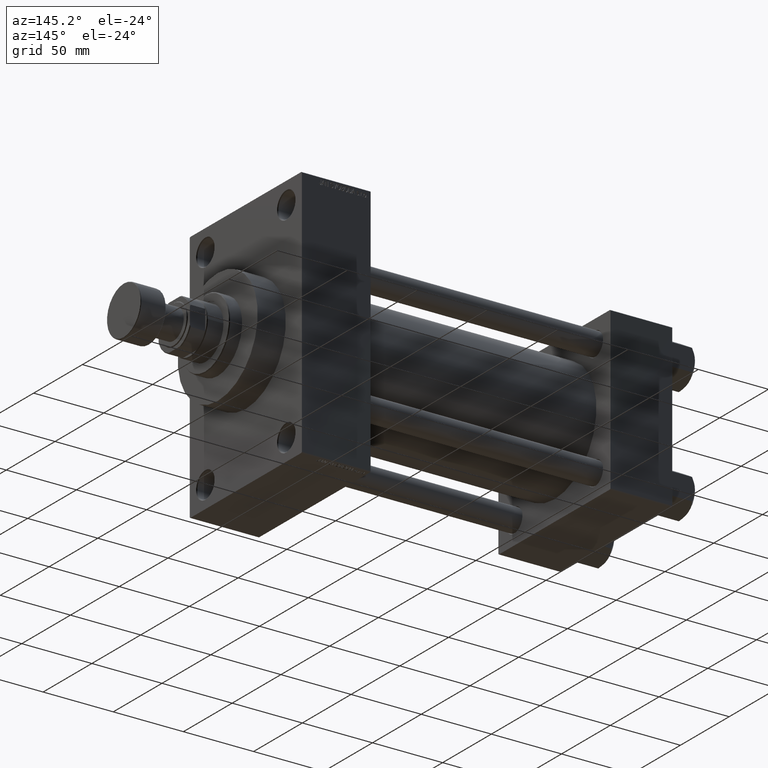
[diagram: clean part render]
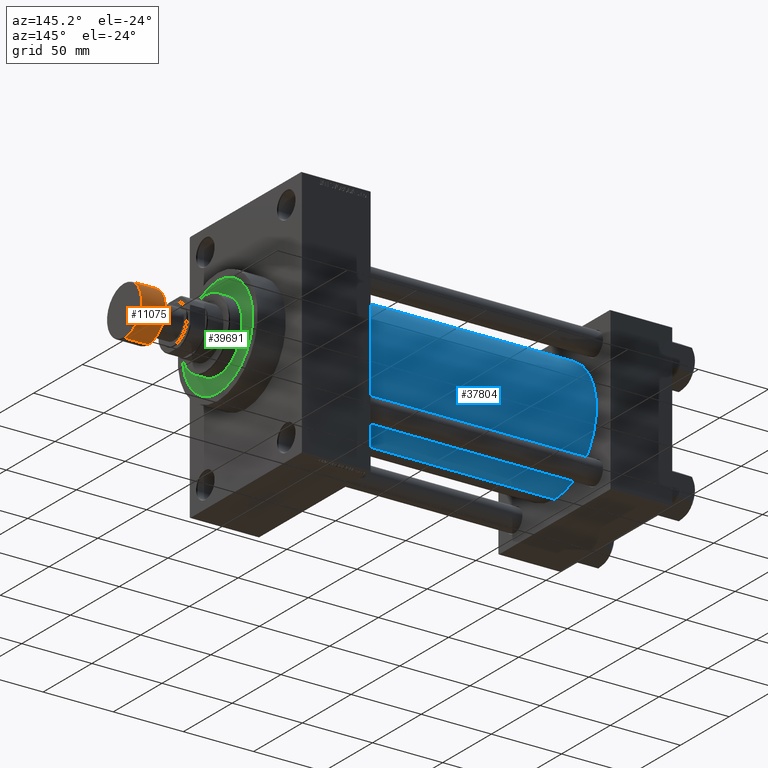
[diagram: same view with three faces highlighted in distinct colors, each labeled with its STEP entity id]
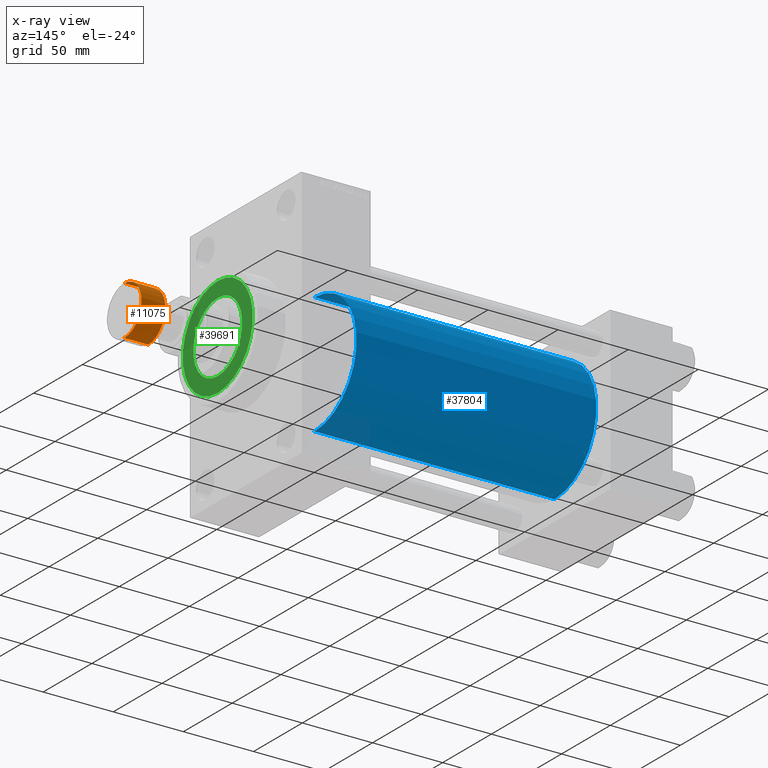
[diagram: x-ray of the same camera — body ghosted, the three highlighted faces saturated]
A machine part, auxiliary view with three faces highlighted in distinct colors.
The next image is the same camera in x-ray (body ghosted, the three faces saturated) — at least one of them is partly hidden behind the body in this view.
Their STEP definitions:

[orange] entity #11075 — the highlighted cylindrical surface (edge-blend (fillet) strip) has radius 17.5 mm, axis along (1, 0, 0).
#258 = CARTESIAN_POINT ( 'NONE',  ( -17.50000000000000355, 2.143131898507868643E-15, -17.49999999999999645 ) ) ;
#2056 = DIRECTION ( 'NONE',  ( 0.000000000000000000, 0.000000000000000000, 1.000000000000000000 ) ) ;
#3227 = CYLINDRICAL_SURFACE ( 'NONE', #24430, 17.50000000000000355 ) ;
#3337 = CARTESIAN_POINT ( 'NONE',  ( 17.50000000000000355, 0.000000000000000000, -0.5000000000000004441 ) ) ;
#3708 = VECTOR ( 'NONE', #2056, 1000.000000000000000 ) ;
#5228 = LINE ( 'NONE', #23979, #3708 ) ;
#6389 = VERTEX_POINT ( 'NONE', #44377 ) ;
#7118 = DIRECTION ( 'NONE',  ( 1.000000000000000000, 0.000000000000000000, 0.000000000000000000 ) ) ;
#8615 = AXIS2_PLACEMENT_3D ( 'NONE', #35458, #16232, #31075 ) ;
#8659 = CIRCLE ( 'NONE', #8615, 17.50000000000000355 ) ;
#11075 = ADVANCED_FACE ( 'NONE', ( #36568 ), #3227, .T. ) ;
#13045 = ORIENTED_EDGE ( 'NONE', *, *, #22729, .T. ) ;
#13384 = VECTOR ( 'NONE', #21028, 1000.000000000000000 ) ;
#13530 = CARTESIAN_POINT ( 'NONE',  ( 0.000000000000000000, 0.000000000000000000, -0.5000000000000004441 ) ) ;
#14430 = CARTESIAN_POINT ( 'NONE',  ( 0.000000000000000000, 0.000000000000000000, -18.00000000000000000 ) ) ;
#16171 = CIRCLE ( 'NONE', #17717, 17.50000000000000355 ) ;
#16232 = DIRECTION ( 'NONE',  ( 0.000000000000000000, 0.000000000000000000, 1.000000000000000000 ) ) ;
#17717 = AXIS2_PLACEMENT_3D ( 'NONE', #13530, #46865, #36149 ) ;
#19610 = EDGE_CURVE ( 'NONE', #6389, #39145, #5228, .T. ) ;
#20471 = ORIENTED_EDGE ( 'NONE', *, *, #19610, .F. ) ;
#21028 = DIRECTION ( 'NONE',  ( 0.000000000000000000, 0.000000000000000000, 1.000000000000000000 ) ) ;
#22729 = EDGE_CURVE ( 'NONE', #32971, #39145, #16171, .T. ) ;
#23979 = CARTESIAN_POINT ( 'NONE',  ( 17.50000000000000355, 0.000000000000000000, -18.00000000000000000 ) ) ;
#24430 = AXIS2_PLACEMENT_3D ( 'NONE', #14430, #29268, #7118 ) ;
#29268 = DIRECTION ( 'NONE',  ( 0.000000000000000000, 0.000000000000000000, 1.000000000000000000 ) ) ;
#29786 = CARTESIAN_POINT ( 'NONE',  ( -17.50000000000000355, 2.143131898507868643E-15, -0.5000000000000004441 ) ) ;
#31075 = DIRECTION ( 'NONE',  ( 1.000000000000000000, 0.000000000000000000, 0.000000000000000000 ) ) ;
#31236 = CARTESIAN_POINT ( 'NONE',  ( -17.50000000000000355, 2.143131898507868643E-15, -18.00000000000000000 ) ) ;
#32971 = VERTEX_POINT ( 'NONE', #29786 ) ;
#34213 = ORIENTED_EDGE ( 'NONE', *, *, #40725, .T. ) ;
#35130 = LINE ( 'NONE', #31236, #13384 ) ;
#35458 = CARTESIAN_POINT ( 'NONE',  ( 0.000000000000000000, 0.000000000000000000, -17.49999999999999645 ) ) ;
#36149 = DIRECTION ( 'NONE',  ( 1.000000000000000000, 0.000000000000000000, 0.000000000000000000 ) ) ;
#36568 = FACE_OUTER_BOUND ( 'NONE', #38068, .T. ) ;
#38068 = EDGE_LOOP ( 'NONE', ( #34213, #46005, #13045, #20471 ) ) ;
#39145 = VERTEX_POINT ( 'NONE', #3337 ) ;
#40374 = VERTEX_POINT ( 'NONE', #258 ) ;
#40725 = EDGE_CURVE ( 'NONE', #6389, #40374, #8659, .T. ) ;
#44377 = CARTESIAN_POINT ( 'NONE',  ( 17.50000000000000355, 0.000000000000000000, -17.49999999999999645 ) ) ;
#46005 = ORIENTED_EDGE ( 'NONE', *, *, #46087, .T. ) ;
#46087 = EDGE_CURVE ( 'NONE', #40374, #32971, #35130, .T. ) ;
#46865 = DIRECTION ( 'NONE',  ( -0.000000000000000000, -0.000000000000000000, -1.000000000000000000 ) ) ;

[blue] entity #37804 — the highlighted cylindrical surface (partial cylindrical patch) has radius 43 mm, axis along (-1, -0, -0).
#891 = CARTESIAN_POINT ( 'NONE',  ( 43.99999999999998579, -2.602085213965210642E-15, 43.00000000000000000 ) ) ;
#2475 = AXIS2_PLACEMENT_3D ( 'NONE', #32392, #6610, #36295 ) ;
#2553 = EDGE_CURVE ( 'NONE', #31349, #4031, #41338, .T. ) ;
#3620 = CYLINDRICAL_SURFACE ( 'NONE', #6993, 43.00000000000000000 ) ;
#4031 = VERTEX_POINT ( 'NONE', #891 ) ;
#4959 = LINE ( 'NONE', #46323, #16144 ) ;
#6610 = DIRECTION ( 'NONE',  ( 1.000000000000000000, -0.000000000000000000, 0.000000000000000000 ) ) ;
#6993 = AXIS2_PLACEMENT_3D ( 'NONE', #25779, #44269, #14110 ) ;
#8551 = CARTESIAN_POINT ( 'NONE',  ( 215.0000000000000284, 2.663896022368408223E-15, -43.00000000000000000 ) ) ;
#9498 = CARTESIAN_POINT ( 'NONE',  ( 215.0000000000000284, -2.602085213965210642E-15, 0.000000000000000000 ) ) ;
#14110 = DIRECTION ( 'NONE',  ( 0.000000000000000000, 0.000000000000000000, 1.000000000000000000 ) ) ;
#14749 = EDGE_LOOP ( 'NONE', ( #38107, #15426, #33558, #35048 ) ) ;
#15256 = EDGE_CURVE ( 'NONE', #32601, #33030, #43218, .T. ) ;
#15426 = ORIENTED_EDGE ( 'NONE', *, *, #34130, .T. ) ;
#16144 = VECTOR ( 'NONE', #31220, 1000.000000000000000 ) ;
#17758 = FACE_OUTER_BOUND ( 'NONE', #14749, .T. ) ;
#19967 = EDGE_CURVE ( 'NONE', #33030, #4031, #35091, .T. ) ;
#20504 = CARTESIAN_POINT ( 'NONE',  ( 215.0000000000000284, -2.602085213965210642E-15, 43.00000000000000000 ) ) ;
#24346 = DIRECTION ( 'NONE',  ( 1.000000000000000000, 0.000000000000000000, 0.000000000000000000 ) ) ;
#25328 = AXIS2_PLACEMENT_3D ( 'NONE', #9498, #24346, #39194 ) ;
#25779 = CARTESIAN_POINT ( 'NONE',  ( 215.0000000000000284, -2.602085213965210642E-15, 0.000000000000000000 ) ) ;
#27387 = CARTESIAN_POINT ( 'NONE',  ( 43.99999999999998579, 2.663896022368408223E-15, -43.00000000000000000 ) ) ;
#30497 = CARTESIAN_POINT ( 'NONE',  ( 215.0000000000000284, -2.602085213965210642E-15, 43.00000000000000000 ) ) ;
#31220 = DIRECTION ( 'NONE',  ( -1.000000000000000000, -0.000000000000000000, -0.000000000000000000 ) ) ;
#31349 = VERTEX_POINT ( 'NONE', #27387 ) ;
#32392 = CARTESIAN_POINT ( 'NONE',  ( 43.99999999999998579, -2.602085213965210642E-15, 0.000000000000000000 ) ) ;
#32601 = VERTEX_POINT ( 'NONE', #8551 ) ;
#33030 = VERTEX_POINT ( 'NONE', #30497 ) ;
#33558 = ORIENTED_EDGE ( 'NONE', *, *, #2553, .T. ) ;
#34130 = EDGE_CURVE ( 'NONE', #32601, #31349, #4959, .T. ) ;
#35048 = ORIENTED_EDGE ( 'NONE', *, *, #19967, .F. ) ;
#35091 = LINE ( 'NONE', #20504, #46371 ) ;
#36295 = DIRECTION ( 'NONE',  ( 0.000000000000000000, 0.000000000000000000, 1.000000000000000000 ) ) ;
#37804 = ADVANCED_FACE ( 'NONE', ( #17758 ), #3620, .T. ) ;
#38107 = ORIENTED_EDGE ( 'NONE', *, *, #15256, .F. ) ;
#39194 = DIRECTION ( 'NONE',  ( 0.000000000000000000, 0.000000000000000000, -1.000000000000000000 ) ) ;
#41338 = CIRCLE ( 'NONE', #2475, 43.00000000000000000 ) ;
#43218 = CIRCLE ( 'NONE', #25328, 43.00000000000000000 ) ;
#44269 = DIRECTION ( 'NONE',  ( -1.000000000000000000, -0.000000000000000000, -0.000000000000000000 ) ) ;
#45576 = DIRECTION ( 'NONE',  ( -1.000000000000000000, -0.000000000000000000, -0.000000000000000000 ) ) ;
#46323 = CARTESIAN_POINT ( 'NONE',  ( 215.0000000000000284, 2.663896022368408223E-15, -43.00000000000000000 ) ) ;
#46371 = VECTOR ( 'NONE', #45576, 1000.000000000000000 ) ;

[green] entity #39691 — the highlighted planar face has unit normal (1, 0, 0).
#658 = AXIS2_PLACEMENT_3D ( 'NONE', #34285, #19202, #19687 ) ;
#3318 = FACE_OUTER_BOUND ( 'NONE', #18402, .T. ) ;
#5024 = DIRECTION ( 'NONE',  ( 1.000000000000000000, 0.000000000000000000, 0.000000000000000000 ) ) ;
#8472 = CIRCLE ( 'NONE', #35674, 25.00000000000000000 ) ;
#8968 = ORIENTED_EDGE ( 'NONE', *, *, #34493, .T. ) ;
#11416 = EDGE_CURVE ( 'NONE', #41539, #40353, #27520, .T. ) ;
#12308 = CIRCLE ( 'NONE', #658, 25.00000000000000000 ) ;
#12553 = DIRECTION ( 'NONE',  ( 1.000000000000000000, 0.000000000000000000, 0.000000000000000000 ) ) ;
#15600 = AXIS2_PLACEMENT_3D ( 'NONE', #18639, #17682, #40076 ) ;
#17682 = DIRECTION ( 'NONE',  ( 0.000000000000000000, 0.000000000000000000, 1.000000000000000000 ) ) ;
#18402 = EDGE_LOOP ( 'NONE', ( #29853, #8968 ) ) ;
#18639 = CARTESIAN_POINT ( 'NONE',  ( 0.000000000000000000, 0.000000000000000000, 43.25999999999999801 ) ) ;
#19004 = CARTESIAN_POINT ( 'NONE',  ( -25.00000000000000000, 0.000000000000000000, 43.25999999999999801 ) ) ;
#19202 = DIRECTION ( 'NONE',  ( 0.000000000000000000, 0.000000000000000000, 1.000000000000000000 ) ) ;
#19687 = DIRECTION ( 'NONE',  ( 1.000000000000000000, 0.000000000000000000, 0.000000000000000000 ) ) ;
#20281 = EDGE_LOOP ( 'NONE', ( #29213, #26103 ) ) ;
#20857 = AXIS2_PLACEMENT_3D ( 'NONE', #45670, #27183, #5024 ) ;
#22282 = PLANE ( 'NONE',  #15600 ) ;
#22743 = DIRECTION ( 'NONE',  ( 1.000000000000000000, 0.000000000000000000, 0.000000000000000000 ) ) ;
#23276 = CARTESIAN_POINT ( 'NONE',  ( 0.000000000000000000, 0.000000000000000000, 43.25999999999999801 ) ) ;
#23996 = DIRECTION ( 'NONE',  ( 0.000000000000000000, 0.000000000000000000, 1.000000000000000000 ) ) ;
#25022 = EDGE_CURVE ( 'NONE', #26465, #31422, #8472, .T. ) ;
#25152 = CARTESIAN_POINT ( 'NONE',  ( 25.00000000000000000, 3.061616997868383043E-15, 43.25999999999999801 ) ) ;
#26103 = ORIENTED_EDGE ( 'NONE', *, *, #25022, .F. ) ;
#26397 = CARTESIAN_POINT ( 'NONE',  ( 0.000000000000000000, 0.000000000000000000, 43.25999999999999801 ) ) ;
#26465 = VERTEX_POINT ( 'NONE', #25152 ) ;
#27183 = DIRECTION ( 'NONE',  ( 0.000000000000000000, 0.000000000000000000, 1.000000000000000000 ) ) ;
#27520 = CIRCLE ( 'NONE', #32199, 36.00000000000000000 ) ;
#29213 = ORIENTED_EDGE ( 'NONE', *, *, #34284, .F. ) ;
#29853 = ORIENTED_EDGE ( 'NONE', *, *, #11416, .T. ) ;
#31422 = VERTEX_POINT ( 'NONE', #19004 ) ;
#32199 = AXIS2_PLACEMENT_3D ( 'NONE', #26397, #41235, #22743 ) ;
#34284 = EDGE_CURVE ( 'NONE', #31422, #26465, #12308, .T. ) ;
#34285 = CARTESIAN_POINT ( 'NONE',  ( 0.000000000000000000, 0.000000000000000000, 43.25999999999999801 ) ) ;
#34493 = EDGE_CURVE ( 'NONE', #40353, #41539, #40278, .T. ) ;
#35464 = CARTESIAN_POINT ( 'NONE',  ( -36.00000000000000000, 0.000000000000000000, 43.25999999999999801 ) ) ;
#35674 = AXIS2_PLACEMENT_3D ( 'NONE', #23276, #23996, #12553 ) ;
#39691 = ADVANCED_FACE ( 'NONE', ( #44199, #3318 ), #22282, .T. ) ;
#40076 = DIRECTION ( 'NONE',  ( 1.000000000000000000, 0.000000000000000000, -0.000000000000000000 ) ) ;
#40278 = CIRCLE ( 'NONE', #20857, 36.00000000000000000 ) ;
#40353 = VERTEX_POINT ( 'NONE', #45041 ) ;
#41235 = DIRECTION ( 'NONE',  ( 0.000000000000000000, 0.000000000000000000, 1.000000000000000000 ) ) ;
#41539 = VERTEX_POINT ( 'NONE', #35464 ) ;
#44199 = FACE_BOUND ( 'NONE', #20281, .T. ) ;
#45041 = CARTESIAN_POINT ( 'NONE',  ( 36.00000000000000000, 4.408728476930470856E-15, 43.25999999999999801 ) ) ;
#45670 = CARTESIAN_POINT ( 'NONE',  ( 0.000000000000000000, 0.000000000000000000, 43.25999999999999801 ) ) ;